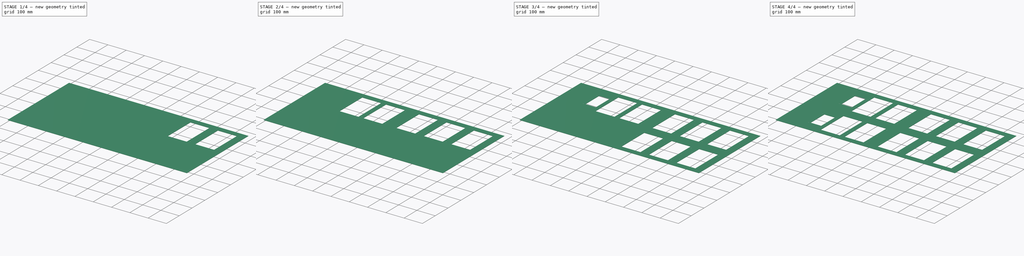
[diagram: build sequence overview — one tinted view per stage of 4, left to right]
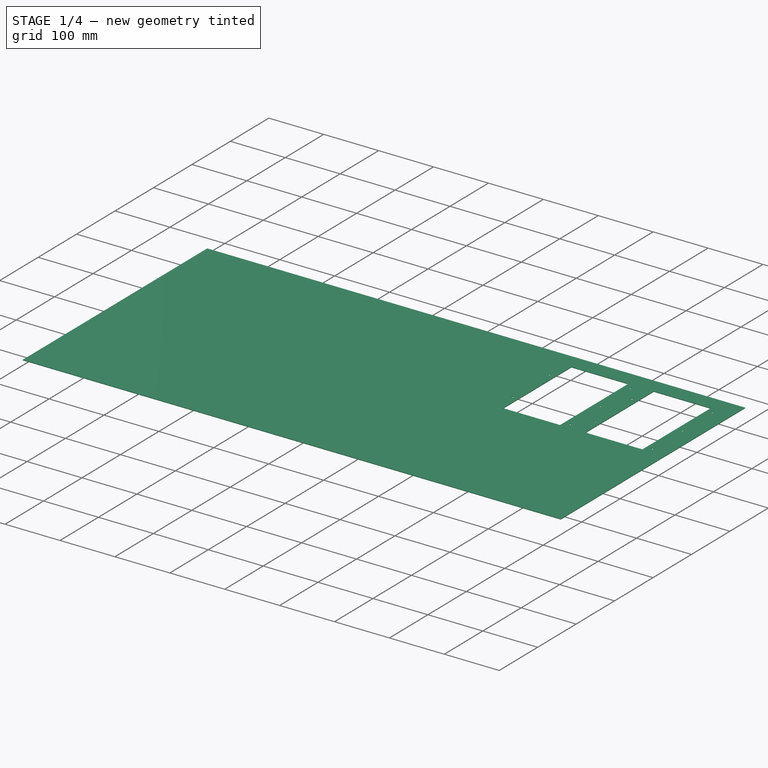
[diagram: stage 1 of 4 — iso view after this stage's code; geometry added in this stage tinted green]
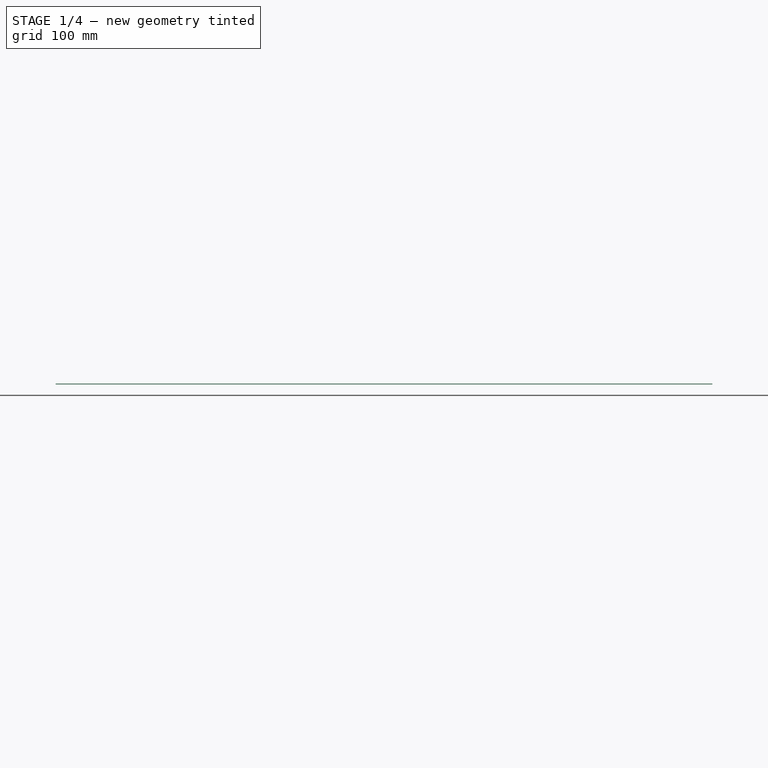
[diagram: stage 1 of 4 — front view after this stage's code; geometry added in this stage tinted green]
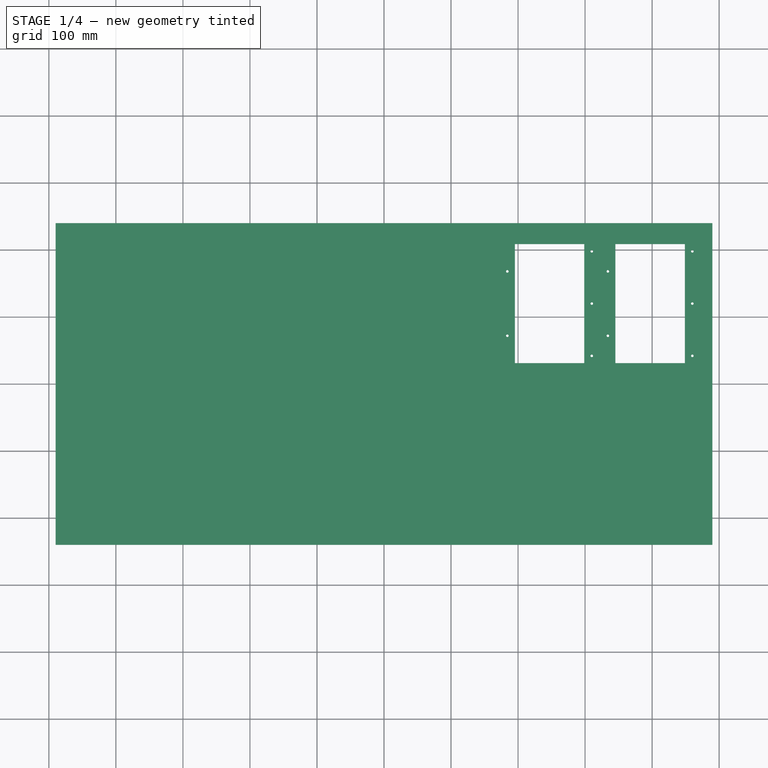
[diagram: stage 1 of 4 — top view after this stage's code; geometry added in this stage tinted green]
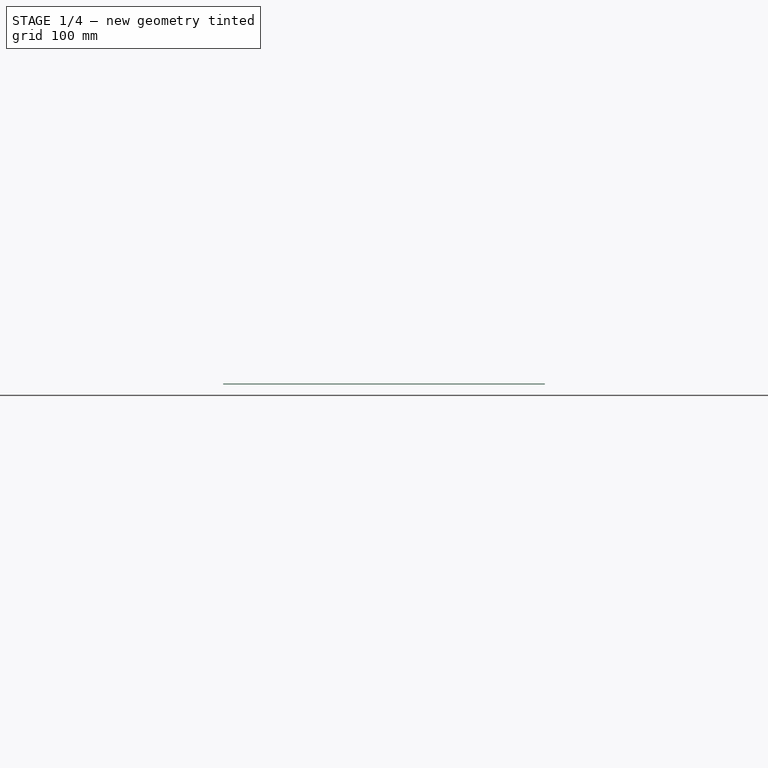
[diagram: stage 1 of 4 — right view after this stage's code; geometry added in this stage tinted green]
FCSTD DOCUMENT  (FreeCAD 0.20R29603 (Git))
Label: FrontPanel_Clean
License: All rights reserved
LicenseURL: http://en.wikipedia.org/wiki/All_rights_reserved
objects: Sketcher::SketchObject×13, PartDesign::SubShapeBinder×12, PartDesign::Pocket×12, Spreadsheet::Sheet×1, PartDesign::Pad×1, PartDesign::Body×1, Part::Part2DObjectPython×1
note: 53 computed .brp shape members not serialized (recipe doc carries the construction recipe); baked Part::Feature solids carry a one-line shape summary decoded from their .brp

FEATURE [Sketcher::SketchObject] Sketch
  FullyConstrained = true
  MapMode = 5
  Support = -> [XY_Plane]
  expr: Constraints[8] = <<Params>>.panel_width
  expr: Constraints[9] = <<Params>>.panel_height
  sketch-geometry (4):
    g0: LineSegment StartX=-490 StartY=240 StartZ=0 EndX=490 EndY=240 EndZ=0
    g1: LineSegment StartX=490 StartY=240 StartZ=0 EndX=490 EndY=-240 EndZ=0
    g2: LineSegment StartX=490 StartY=-240 StartZ=0 EndX=-490 EndY=-240 EndZ=0
    g3: LineSegment StartX=-490 StartY=-240 StartZ=0 EndX=-490 EndY=240 EndZ=0
  constraints (10):
    c: Coincident(g0,g1)
    c: Coincident(g1,g2)
    c: Coincident(g2,g3)
    c: Coincident(g3,g0)
    c: Horizontal(g2)
    c: Vertical(g1)
    c: Symmetric(g0,g0,g-2)
    c: Symmetric(g0,g2,g-1)
    c: DistanceX(g0,g0) = 980
    c: DistanceY(g2,g0) = 480
FEATURE [Spreadsheet::Sheet] Spreadsheet  label="Params"
  cells = A2=panel width; B2(panel_width)=980; A3=panel_height; B3(panel_height)=480; A4=panel_thickness; B4(panel_thickness)=1; A5=dig_margin_h; B5(dig_margin_h)=5; A6=dig_margin_v; B6(dig_margin_v)=5; A7=dig_hole_diameter; B7(dig_hole_diameter)=3.8; A8=srv_margin_h; B8(srv_margin_h)=5; A9=srv_margin_v; B9(srv_margin_v)=5
FEATURE [PartDesign::Pad] Pad
  Direction = (0,0,1)
  Length = 1
  Length2 = 10
  Profile = -> Sketch
  ReferenceAxis = -> Sketch [N_Axis]
  Type = 0
  expr: Length = <<Params>>.panel_thickness
FEATURE [PartDesign::SubShapeBinder] Binder002
  BindCopyOnChange = 0
  BindMode = 0
  ClaimChildren = false
  Context = -> Body [Binder002.]
  Fuse = false
  MakeFace = true
  OffsetFill = false
  OffsetIntersection = false
  OffsetJoinType = 0
  OffsetOpenResult = false
  PartialLoad = false
  Relative = true
  _Version = 2
FEATURE [Sketcher::SketchObject] Sketch077
  ExternalGeometry = -> [Binder002]
  FullyConstrained = true
  MapMode = 5
  Placement = pos=(0,0,0) rot=(1,0,0;3.14159rad)
  Support = -> [Pad]
  expr: Constraints[10] = <<Params>>.dig_margin_h
  expr: Constraints[11] = <<Params>>.dig_margin_v
  expr: Constraints[17] = <<Params>>.dig_hole_diameter
  expr: Constraints[8] = <<Params>>.dig_margin_h
  expr: Constraints[9] = <<Params>>.dig_margin_v
  sketch-geometry (9):
    g0: LineSegment StartX=345.2 StartY=-31.2 StartZ=0 EndX=448.8 EndY=-31.2 EndZ=0
    g1: LineSegment StartX=448.8 StartY=-31.2 StartZ=0 EndX=448.8 EndY=-208.8 EndZ=0
    g2: LineSegment StartX=448.8 StartY=-208.8 StartZ=0 EndX=345.2 EndY=-208.8 EndZ=0
    g3: LineSegment StartX=345.2 StartY=-208.8 StartZ=0 EndX=345.2 EndY=-31.2 EndZ=0
    g4: Circle CenterX=460 CenterY=-42 CenterZ=0 NormalX=0 NormalY=0 NormalZ=1 AngleXU=0 Radius=1.9
    g5: Circle CenterX=460 CenterY=-120 CenterZ=0 NormalX=0 NormalY=0 NormalZ=1 AngleXU=0 Radius=1.9
    g6: Circle CenterX=460 CenterY=-198 CenterZ=0 NormalX=0 NormalY=0 NormalZ=1 AngleXU=0 Radius=1.9
    g7: Circle CenterX=334 CenterY=-168 CenterZ=0 NormalX=0 NormalY=0 NormalZ=1 AngleXU=0 Radius=1.9
    g8: Circle CenterX=334 CenterY=-72 CenterZ=0 NormalX=0 NormalY=0 NormalZ=1 AngleXU=0 Radius=1.9
  constraints (22):
    c: Coincident(g0,g1)
    c: Coincident(g1,g2)
    c: Coincident(g2,g3)
    c: Coincident(g3,g0)
    c: Horizontal(g0)
    c: Horizontal(g2)
    c: Vertical(g1)
    c: Vertical(g3)
    c: DistanceX(g-8,g0) = 5
    c: DistanceY(g0,g-8) = 5
    c: DistanceX(g1,g-9) = 5
    c: DistanceY(g-9,g1) = 5
    c: Coincident(g4,g-3)
    c: Coincident(g5,g-4)
    c: Coincident(g6,g-5)
    c: Coincident(g7,g-6)
    c: Coincident(g8,g-7)
    c: Diameter(g4) = 3.8
    c: Equal(g5,g6)
    c: Equal(g6,g7)
    c: Equal(g7,g8)
    c: Equal(g4,g5)
FEATURE [PartDesign::Pocket] Pocket018
  BaseFeature = -> Pad
  Direction = (0,0,1)
  Length = 5
  Length2 = 5
  Profile = -> Sketch077
  ReferenceAxis = -> Sketch077 [N_Axis]
  Type = 2
FEATURE [PartDesign::SubShapeBinder] Binder005
  BindCopyOnChange = 0
  BindMode = 0
  ClaimChildren = false
  Context = -> Body [Binder005.]
  Fuse = false
  MakeFace = true
  OffsetFill = false
  OffsetIntersection = false
  OffsetJoinType = 0
  OffsetOpenResult = false
  PartialLoad = false
  Relative = true
  _Version = 2
FEATURE [Sketcher::SketchObject] Sketch095
  ExternalGeometry = -> [Binder005]
  FullyConstrained = true
  MapMode = 5
  Placement = pos=(0,0,0) rot=(1,0,0;3.14159rad)
  Support = -> [Pocket018]
  expr: Constraints[13] = <<Params>>.dig_hole_diameter
  expr: Constraints[18] = <<Params>>.dig_margin_h
  expr: Constraints[19] = <<Params>>.dig_margin_v
  expr: Constraints[20] = <<Params>>.dig_margin_h
  expr: Constraints[21] = <<Params>>.dig_margin_v
  sketch-geometry (9):
    g0: LineSegment StartX=195.2 StartY=-31.2 StartZ=0 EndX=298.8 EndY=-31.2 EndZ=0
    g1: LineSegment StartX=298.8 StartY=-31.2 StartZ=0 EndX=298.8 EndY=-208.8 EndZ=0
    g2: LineSegment StartX=298.8 StartY=-208.8 StartZ=0 EndX=195.2 EndY=-208.8 EndZ=0
    g3: LineSegment StartX=195.2 StartY=-208.8 StartZ=0 EndX=195.2 EndY=-31.2 EndZ=0
    g4: Circle CenterX=310 CenterY=-42 CenterZ=0 NormalX=0 NormalY=0 NormalZ=1 AngleXU=0 Radius=1.9
    g5: Circle CenterX=310 CenterY=-120 CenterZ=0 NormalX=0 NormalY=0 NormalZ=1 AngleXU=0 Radius=1.9
    g6: Circle CenterX=184 CenterY=-72 CenterZ=0 NormalX=0 NormalY=0 NormalZ=1 AngleXU=0 Radius=1.9
    g7: Circle CenterX=310 CenterY=-198 CenterZ=0 NormalX=0 NormalY=0 NormalZ=1 AngleXU=0 Radius=1.9
    g8: Circle CenterX=184 CenterY=-168 CenterZ=0 NormalX=0 NormalY=0 NormalZ=1 AngleXU=0 Radius=1.9
  constraints (22):
    c: Coincident(g0,g1)
    c: Coincident(g1,g2)
    c: Coincident(g2,g3)
    c: Coincident(g3,g0)
    c: Horizontal(g0)
    c: Horizontal(g2)
    c: Vertical(g1)
    c: Vertical(g3)
    c: Coincident(g4,g-9)
    c: Coincident(g5,g-7)
    c: Coincident(g6,g-5)
    c: Coincident(g7,g-8)
    c: Coincident(g8,g-6)
    c: Diameter(g7) = 3.8
    c: Equal(g7,g5)
    c: Equal(g5,g8)
    c: Equal(g8,g4)
    c: Equal(g4,g6)
    c: DistanceX(g-3,g0) = 5
    c: DistanceY(g0,g-3) = 5
    c: DistanceX(g1,g-4) = 5
    c: DistanceY(g-4,g1) = 5
FEATURE [PartDesign::Pocket] Pocket023
  BaseFeature = -> Pocket018
  Direction = (0,0,1)
  Length = 5
  Length2 = 5
  Profile = -> Sketch095
  ReferenceAxis = -> Sketch095 [N_Axis]
  Type = 2
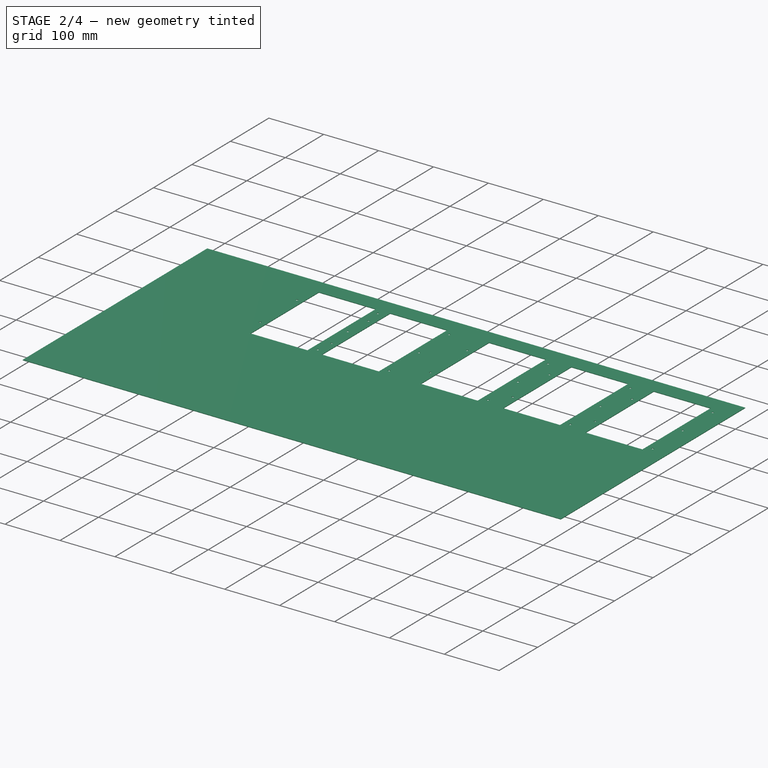
[diagram: stage 2 of 4 — iso view after this stage's code; geometry added in this stage tinted green]
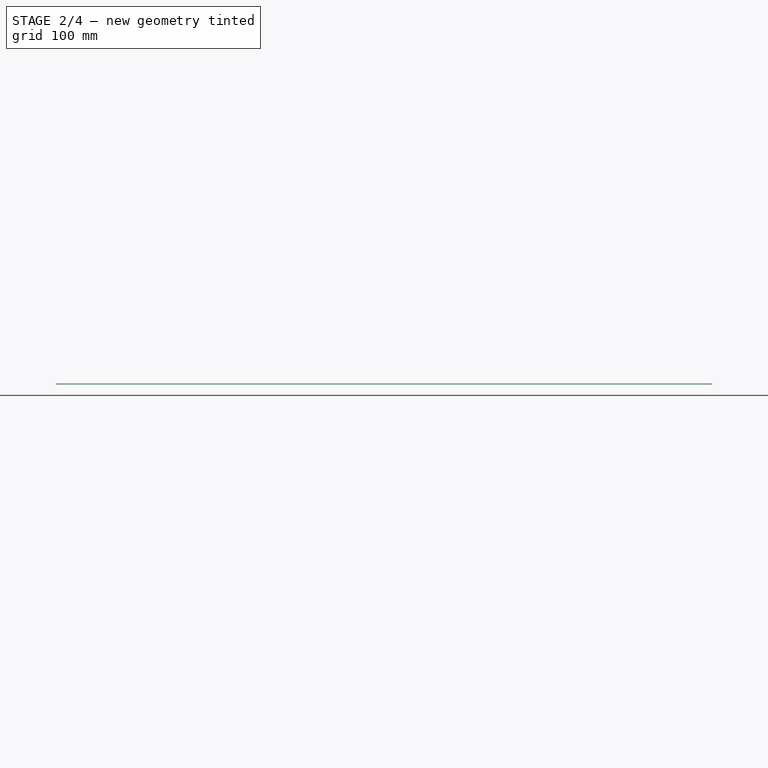
[diagram: stage 2 of 4 — front view after this stage's code; geometry added in this stage tinted green]
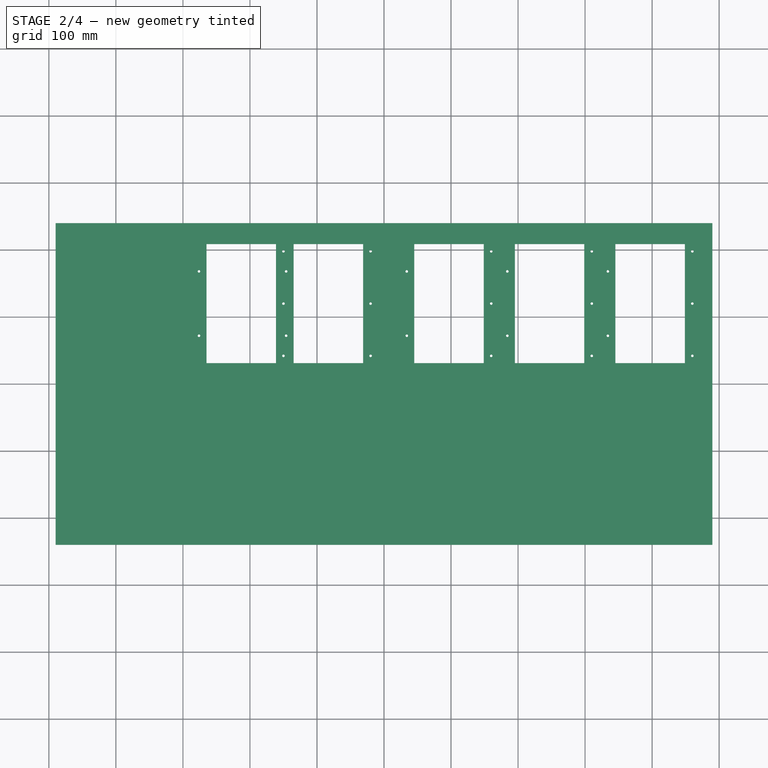
[diagram: stage 2 of 4 — top view after this stage's code; geometry added in this stage tinted green]
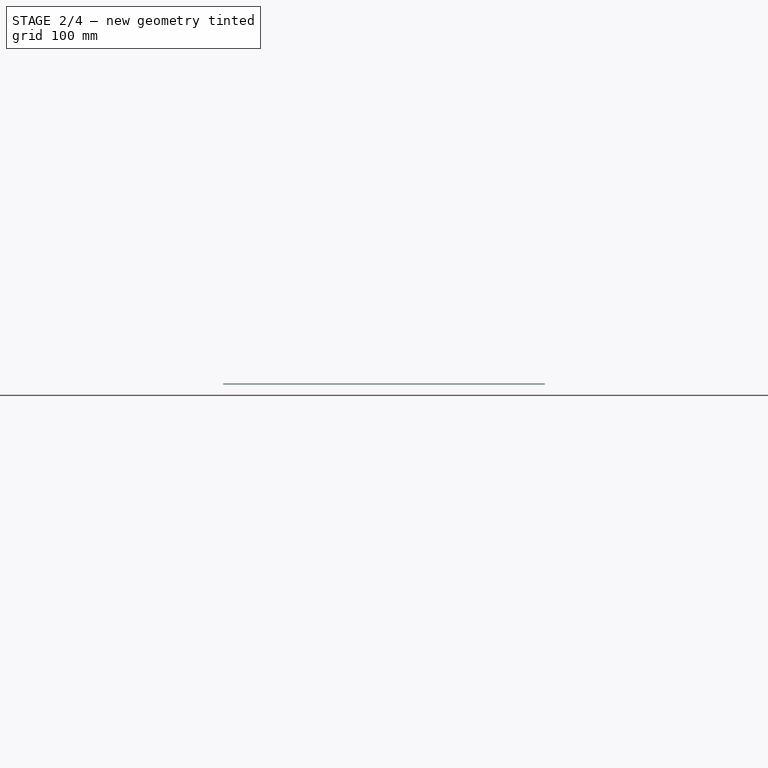
[diagram: stage 2 of 4 — right view after this stage's code; geometry added in this stage tinted green]
FEATURE [PartDesign::SubShapeBinder] Binder008
  BindCopyOnChange = 0
  BindMode = 0
  ClaimChildren = false
  Context = -> Body [Binder008.]
  Fuse = false
  MakeFace = true
  OffsetFill = false
  OffsetIntersection = false
  OffsetJoinType = 0
  OffsetOpenResult = false
  PartialLoad = false
  Relative = true
  _Version = 2
FEATURE [Sketcher::SketchObject] Sketch113
  ExternalGeometry = -> [Binder008]
  FullyConstrained = true
  MapMode = 5
  Placement = pos=(0,0,0) rot=(1,0,0;3.14159rad)
  Support = -> [Pocket023]
  expr: Constraints[17] = <<Params>>.dig_margin_v
  expr: Constraints[18] = <<Params>>.dig_margin_h
  expr: Constraints[19] = <<Params>>.dig_margin_v
  expr: Constraints[20] = <<Params>>.dig_margin_h
  expr: Constraints[4] = <<Params>>.dig_hole_diameter
  sketch-geometry (9):
    g0: Circle CenterX=160 CenterY=-120 CenterZ=0 NormalX=0 NormalY=0 NormalZ=1 AngleXU=0 Radius=1.9
    g1: Circle CenterX=160 CenterY=-42 CenterZ=0 NormalX=0 NormalY=0 NormalZ=1 AngleXU=0 Radius=1.9
    g2: Circle CenterX=160 CenterY=-198 CenterZ=0 NormalX=0 NormalY=0 NormalZ=1 AngleXU=0 Radius=1.9
    g3: Circle CenterX=33.9999 CenterY=-168 CenterZ=0 NormalX=0 NormalY=0 NormalZ=1 AngleXU=0 Radius=1.9
    g4: Circle CenterX=33.9999 CenterY=-72 CenterZ=0 NormalX=0 NormalY=0 NormalZ=1 AngleXU=0 Radius=1.9
    g5: LineSegment StartX=45.1999 StartY=-31.2 StartZ=0 EndX=148.8 EndY=-31.2 EndZ=0
    g6: LineSegment StartX=148.8 StartY=-31.2 StartZ=0 EndX=148.8 EndY=-208.8 EndZ=0
    g7: LineSegment StartX=148.8 StartY=-208.8 StartZ=0 EndX=45.1999 EndY=-208.8 EndZ=0
    g8: LineSegment StartX=45.1999 StartY=-208.8 StartZ=0 EndX=45.1999 EndY=-31.2 EndZ=0
  constraints (22):
    c: Coincident(g0,g-7)
    c: Coincident(g1,g-6)
    c: Coincident(g2,g-8)
    c: Coincident(g3,g-9)
    c: Diameter(g4) = 3.8
    c: Equal(g4,g3)
    c: Equal(g3,g2)
    c: Equal(g2,g0)
    c: Equal(g0,g1)
    c: Coincident(g5,g6)
    c: Coincident(g6,g7)
    c: Coincident(g7,g8)
    c: Coincident(g8,g5)
    c: Horizontal(g5)
    c: Horizontal(g7)
    c: Vertical(g6)
    c: Vertical(g8)
    c: DistanceY(g5,g-3) = 5
    c: DistanceX(g-3,g5) = 5
    c: DistanceY(g-4,g6) = 5
    c: DistanceX(g6,g-4) = 5
    c: Coincident(g4,g-5)
FEATURE [PartDesign::Pocket] Pocket028
  BaseFeature = -> Pocket023
  Direction = (0,0,1)
  Length = 5
  Length2 = 5
  Profile = -> Sketch113
  ReferenceAxis = -> Sketch113 [N_Axis]
  Type = 2
FEATURE [PartDesign::SubShapeBinder] Binder011
  BindCopyOnChange = 0
  BindMode = 0
  ClaimChildren = false
  Context = -> Body [Binder011.]
  Fuse = false
  MakeFace = true
  OffsetFill = false
  OffsetIntersection = false
  OffsetJoinType = 0
  OffsetOpenResult = false
  PartialLoad = false
  Relative = true
  _Version = 2
FEATURE [Sketcher::SketchObject] Sketch131
  ExternalGeometry = -> [Binder011]
  FullyConstrained = true
  MapMode = 5
  Placement = pos=(0,0,0) rot=(1,0,0;3.14159rad)
  Support = -> [Pocket028]
  expr: Constraints[13] = <<Params>>.dig_hole_diameter
  expr: Constraints[18] = <<Params>>.dig_margin_v
  expr: Constraints[19] = <<Params>>.dig_margin_h
  expr: Constraints[20] = <<Params>>.dig_margin_v
  expr: Constraints[21] = <<Params>>.dig_margin_h
  sketch-geometry (9):
    g0: LineSegment StartX=-134.8 StartY=-31.2001 StartZ=0 EndX=-31.2002 EndY=-31.2001 EndZ=0
    g1: LineSegment StartX=-31.2002 StartY=-31.2001 StartZ=0 EndX=-31.2002 EndY=-208.8 EndZ=0
    g2: LineSegment StartX=-31.2002 StartY=-208.8 StartZ=0 EndX=-134.8 EndY=-208.8 EndZ=0
    g3: LineSegment StartX=-134.8 StartY=-208.8 StartZ=0 EndX=-134.8 EndY=-31.2001 EndZ=0
    g4: Circle CenterX=-20.0002 CenterY=-42.0001 CenterZ=0 NormalX=0 NormalY=0 NormalZ=1 AngleXU=0 Radius=1.9
    g5: Circle CenterX=-20.0002 CenterY=-120 CenterZ=0 NormalX=0 NormalY=0 NormalZ=1 AngleXU=0 Radius=1.9
    g6: Circle CenterX=-20.0002 CenterY=-198 CenterZ=0 NormalX=0 NormalY=0 NormalZ=1 AngleXU=0 Radius=1.9
    g7: Circle CenterX=-146 CenterY=-168 CenterZ=0 NormalX=0 NormalY=0 NormalZ=1 AngleXU=0 Radius=1.9
    g8: Circle CenterX=-146 CenterY=-72.0001 CenterZ=0 NormalX=0 NormalY=0 NormalZ=1 AngleXU=0 Radius=1.9
  constraints (22):
    c: Coincident(g0,g1)
    c: Coincident(g1,g2)
    c: Coincident(g2,g3)
    c: Coincident(g3,g0)
    c: Horizontal(g0)
    c: Horizontal(g2)
    c: Vertical(g1)
    c: Vertical(g3)
    c: Coincident(g4,g-7)
    c: Coincident(g5,g-5)
    c: Coincident(g6,g-6)
    c: Coincident(g7,g-9)
    c: Coincident(g8,g-8)
    c: Diameter(g8) = 3.8
    c: Equal(g8,g7)
    c: Equal(g7,g5)
    c: Equal(g5,g6)
    c: Equal(g6,g4)
    c: DistanceY(g0,g-3) = 5
    c: DistanceX(g-3,g0) = 5
    c: DistanceY(g-4,g1) = 5
    c: DistanceX(g1,g-4) = 5
FEATURE [PartDesign::Pocket] Pocket033
  BaseFeature = -> Pocket028
  Direction = (0,0,1)
  Length = 5
  Length2 = 5
  Profile = -> Sketch131
  ReferenceAxis = -> Sketch131 [N_Axis]
  Type = 2
FEATURE [PartDesign::SubShapeBinder] Binder014
  BindCopyOnChange = 0
  BindMode = 0
  ClaimChildren = false
  Context = -> Body [Binder014.]
  Fuse = false
  MakeFace = true
  OffsetFill = false
  OffsetIntersection = false
  OffsetJoinType = 0
  OffsetOpenResult = false
  PartialLoad = false
  Relative = true
  _Version = 2
FEATURE [Sketcher::SketchObject] Sketch149
  ExternalGeometry = -> [Binder014]
  FullyConstrained = true
  MapMode = 5
  Placement = pos=(0,0,0) rot=(1,0,0;3.14159rad)
  Support = -> [Pocket033]
  expr: Constraints[13] = <<Params>>.dig_hole_diameter
  expr: Constraints[18] = <<Params>>.dig_margin_v
  expr: Constraints[19] = <<Params>>.dig_margin_h
  expr: Constraints[20] = <<Params>>.dig_margin_v
  expr: Constraints[21] = <<Params>>.dig_margin_h
  sketch-geometry (9):
    g0: Circle CenterX=-150 CenterY=-42.0001 CenterZ=0 NormalX=0 NormalY=0 NormalZ=1 AngleXU=0 Radius=1.9
    g1: Circle CenterX=-150 CenterY=-120 CenterZ=0 NormalX=0 NormalY=0 NormalZ=1 AngleXU=0 Radius=1.9
    g2: Circle CenterX=-150 CenterY=-198 CenterZ=0 NormalX=0 NormalY=0 NormalZ=1 AngleXU=0 Radius=1.9
    g3: Circle CenterX=-276 CenterY=-168 CenterZ=0 NormalX=0 NormalY=0 NormalZ=1 AngleXU=0 Radius=1.9
    g4: Circle CenterX=-276 CenterY=-72.0001 CenterZ=0 NormalX=0 NormalY=0 NormalZ=1 AngleXU=0 Radius=1.9
    g5: LineSegment StartX=-264.8 StartY=-31.2001 StartZ=0 EndX=-161.2 EndY=-31.2001 EndZ=0
    g6: LineSegment StartX=-161.2 StartY=-31.2001 StartZ=0 EndX=-161.2 EndY=-208.8 EndZ=0
    g7: LineSegment StartX=-161.2 StartY=-208.8 StartZ=0 EndX=-264.8 EndY=-208.8 EndZ=0
    g8: LineSegment StartX=-264.8 StartY=-208.8 StartZ=0 EndX=-264.8 EndY=-31.2001 EndZ=0
  constraints (22):
    c: Coincident(g0,g-3)
    c: Coincident(g1,g-5)
    c: Coincident(g2,g-6)
    c: Coincident(g3,g-7)
    c: Coincident(g4,g-9)
    c: Coincident(g5,g6)
    c: Coincident(g6,g7)
    c: Coincident(g7,g8)
    c: Coincident(g8,g5)
    c: Horizontal(g5)
    c: Horizontal(g7)
    c: Vertical(g6)
    c: Vertical(g8)
    c: Diameter(g0) = 3.8
    c: Equal(g0,g1)
    c: Equal(g1,g2)
    c: Equal(g2,g3)
    c: Equal(g3,g4)
    c: DistanceY(g5,g-8) = 5
    c: DistanceX(g-8,g5) = 5
    c: DistanceY(g-4,g6) = 5
    c: DistanceX(g6,g-4) = 5
FEATURE [PartDesign::Pocket] Pocket038
  BaseFeature = -> Pocket033
  Direction = (0,0,1)
  Length = 5
  Length2 = 5
  Profile = -> Sketch149
  ReferenceAxis = -> Sketch149 [N_Axis]
  Type = 2
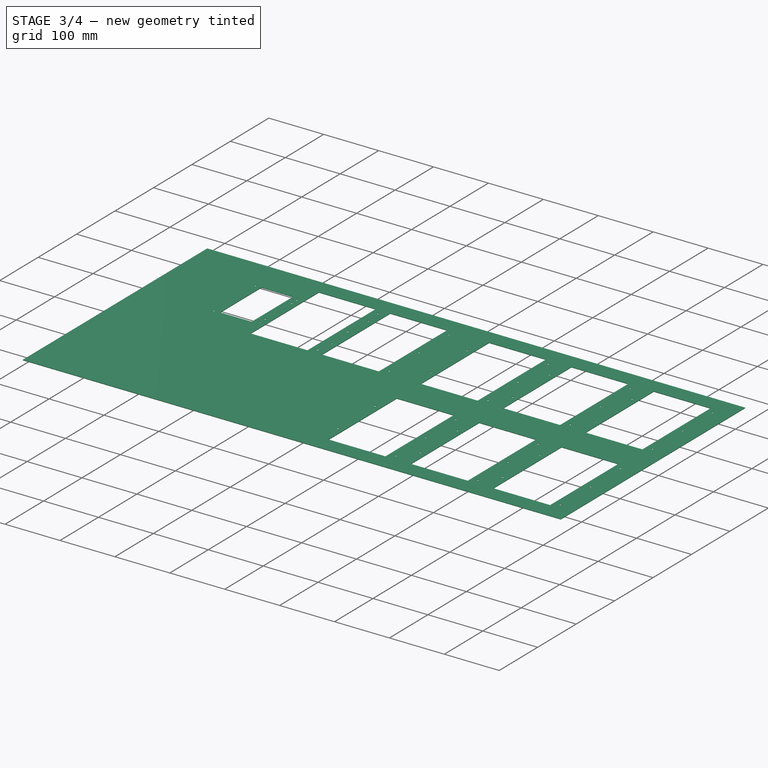
[diagram: stage 3 of 4 — iso view after this stage's code; geometry added in this stage tinted green]
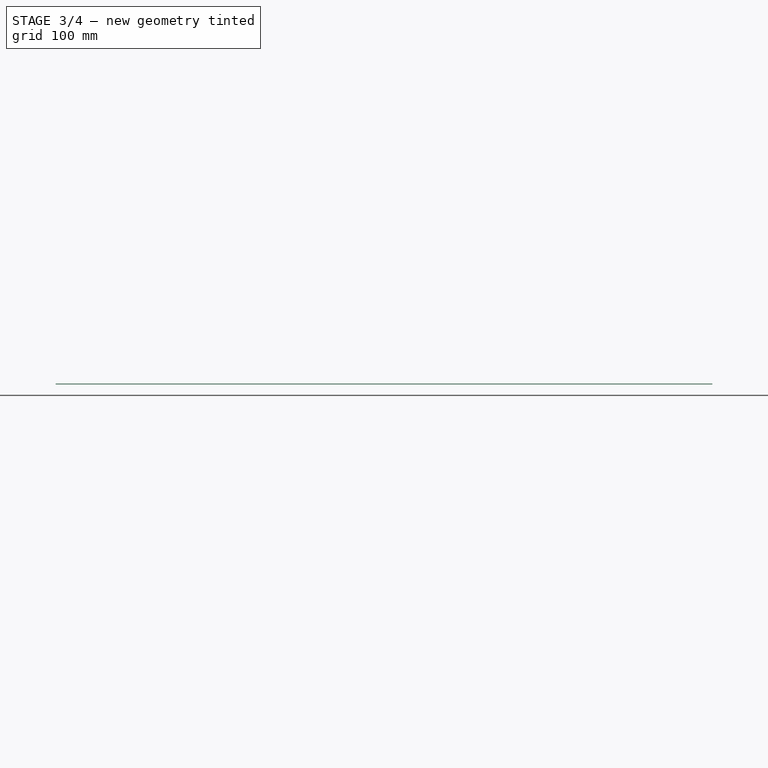
[diagram: stage 3 of 4 — front view after this stage's code; geometry added in this stage tinted green]
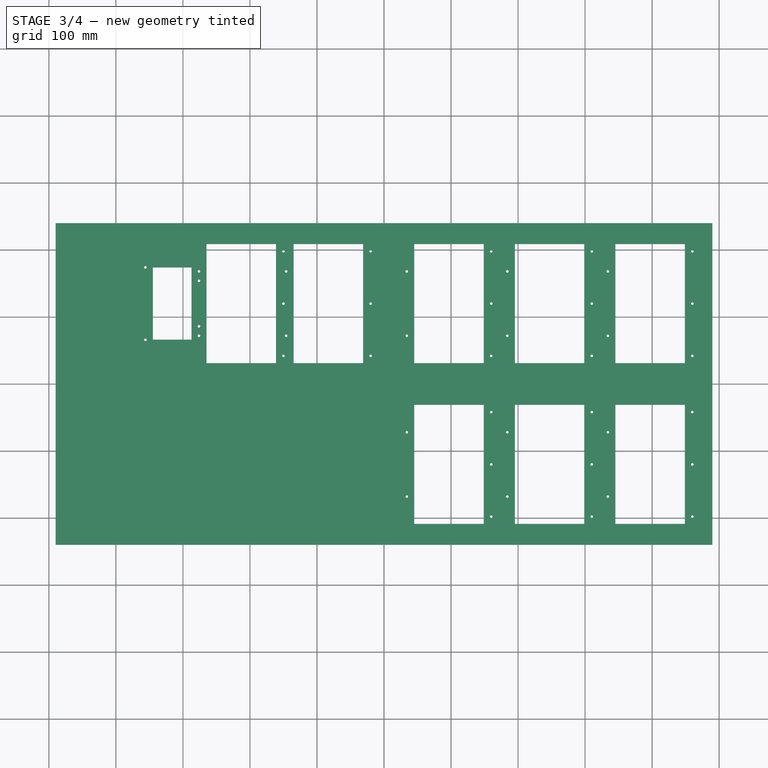
[diagram: stage 3 of 4 — top view after this stage's code; geometry added in this stage tinted green]
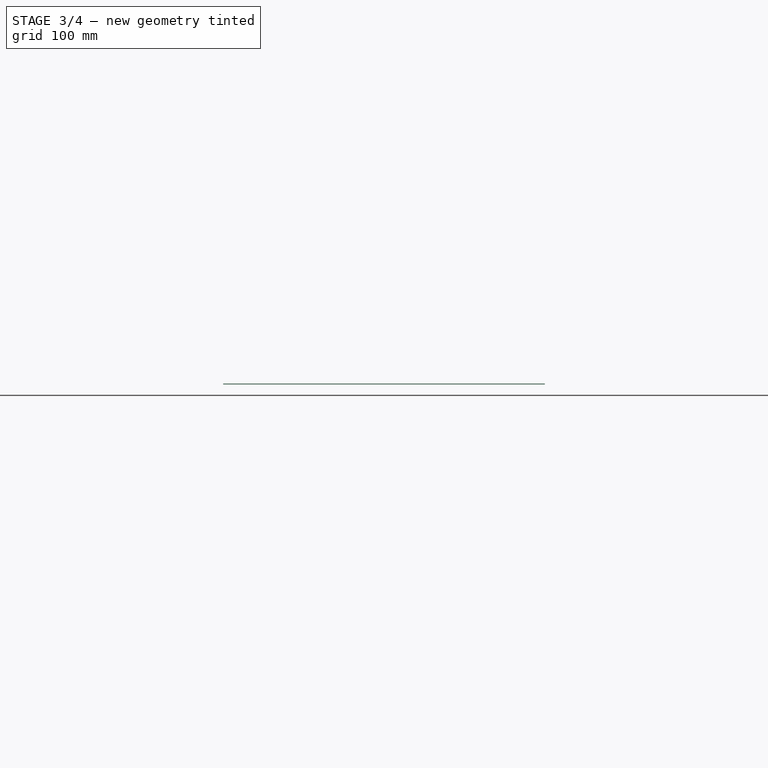
[diagram: stage 3 of 4 — right view after this stage's code; geometry added in this stage tinted green]
FEATURE [PartDesign::SubShapeBinder] Binder019
  BindCopyOnChange = 0
  BindMode = 0
  ClaimChildren = false
  Context = -> Body [Binder019.]
  Fuse = false
  MakeFace = true
  OffsetFill = false
  OffsetIntersection = false
  OffsetJoinType = 0
  OffsetOpenResult = false
  PartialLoad = false
  Relative = true
  _Version = 2
FEATURE [Sketcher::SketchObject] Sketch198
  ExternalGeometry = -> [Binder019]
  FullyConstrained = true
  MapMode = 5
  Placement = pos=(0,0,0) rot=(1,0,0;3.14159rad)
  Support = -> [Pad]
  expr: Constraints[12] = <<Params>>.dig_hole_diameter
  expr: Constraints[16] = <<Params>>.srv_margin_v
  expr: Constraints[17] = <<Params>>.srv_margin_h
  expr: Constraints[18] = <<Params>>.srv_margin_v
  expr: Constraints[19] = <<Params>>.srv_margin_h
  sketch-geometry (8):
    g0: LineSegment StartX=-344.8 StartY=-66.2001 StartZ=0 EndX=-287.2 EndY=-66.2001 EndZ=0
    g1: LineSegment StartX=-287.2 StartY=-66.2001 StartZ=0 EndX=-287.2 EndY=-173.8 EndZ=0
    g2: LineSegment StartX=-287.2 StartY=-173.8 StartZ=0 EndX=-344.8 EndY=-173.8 EndZ=0
    g3: LineSegment StartX=-344.8 StartY=-173.8 StartZ=0 EndX=-344.8 EndY=-66.2001 EndZ=0
    g4: Circle CenterX=-276 CenterY=-86.0001 CenterZ=0 NormalX=0 NormalY=0 NormalZ=1 AngleXU=0 Radius=1.9
    g5: Circle CenterX=-276 CenterY=-154 CenterZ=0 NormalX=0 NormalY=0 NormalZ=1 AngleXU=0 Radius=1.9
    g6: Circle CenterX=-356 CenterY=-66.0001 CenterZ=0 NormalX=0 NormalY=0 NormalZ=1 AngleXU=0 Radius=1.9
    g7: Circle CenterX=-356 CenterY=-174 CenterZ=0 NormalX=0 NormalY=0 NormalZ=1 AngleXU=0 Radius=1.9
  constraints (20):
    c: Coincident(g0,g1)
    c: Coincident(g1,g2)
    c: Coincident(g2,g3)
    c: Coincident(g3,g0)
    c: Horizontal(g0)
    c: Horizontal(g2)
    c: Vertical(g1)
    c: Vertical(g3)
    c: Coincident(g4,g-3)
    c: Coincident(g5,g-5)
    c: Coincident(g6,g-7)
    c: Coincident(g7,g-6)
    c: Diameter(g7) = 3.8
    c: Equal(g7,g5)
    c: Equal(g5,g4)
    c: Equal(g4,g6)
    c: DistanceY(g0,g-8) = 5
    c: DistanceX(g-8,g0) = 5
    c: DistanceY(g-4,g1) = 5
    c: DistanceX(g1,g-4) = 5
FEATURE [PartDesign::Pocket] Pocket056
  BaseFeature = -> Pocket038
  Direction = (0,0,1)
  Length = 5
  Length2 = 5
  Profile = -> Sketch198
  ReferenceAxis = -> Sketch198 [N_Axis]
  Type = 2
FEATURE [PartDesign::SubShapeBinder] Binder022
  BindCopyOnChange = 0
  BindMode = 0
  ClaimChildren = false
  Context = -> Body [Binder022.]
  Fuse = false
  MakeFace = true
  OffsetFill = false
  OffsetIntersection = false
  OffsetJoinType = 0
  OffsetOpenResult = false
  PartialLoad = false
  Relative = true
  _Version = 2
FEATURE [Sketcher::SketchObject] Sketch216
  ExternalGeometry = -> [Binder022]
  FullyConstrained = true
  MapMode = 5
  Placement = pos=(0,0,0) rot=(1,0,0;3.14159rad)
  Support = -> [Pad]
  expr: Constraints[13] = <<Params>>.dig_hole_diameter
  expr: Constraints[18] = <<Params>>.dig_margin_v
  expr: Constraints[19] = <<Params>>.dig_margin_h
  expr: Constraints[20] = <<Params>>.dig_margin_v
  expr: Constraints[21] = <<Params>>.dig_margin_h
  sketch-geometry (9):
    g0: Circle CenterX=460 CenterY=42.0001 CenterZ=0 NormalX=0 NormalY=0 NormalZ=1 AngleXU=0 Radius=1.9
    g1: Circle CenterX=334 CenterY=72.0001 CenterZ=0 NormalX=0 NormalY=0 NormalZ=1 AngleXU=0 Radius=1.9
    g2: Circle CenterX=334 CenterY=168 CenterZ=0 NormalX=0 NormalY=0 NormalZ=1 AngleXU=0 Radius=1.9
    g3: Circle CenterX=460 CenterY=198 CenterZ=0 NormalX=0 NormalY=0 NormalZ=1 AngleXU=0 Radius=1.9
    g4: Circle CenterX=460 CenterY=120 CenterZ=0 NormalX=0 NormalY=0 NormalZ=1 AngleXU=0 Radius=1.9
    g5: LineSegment StartX=345.2 StartY=208.8 StartZ=0 EndX=448.8 EndY=208.8 EndZ=0
    g6: LineSegment StartX=448.8 StartY=208.8 StartZ=0 EndX=448.8 EndY=31.2001 EndZ=0
    g7: LineSegment StartX=448.8 StartY=31.2001 StartZ=0 EndX=345.2 EndY=31.2001 EndZ=0
    g8: LineSegment StartX=345.2 StartY=31.2001 StartZ=0 EndX=345.2 EndY=208.8 EndZ=0
  constraints (22):
    c: Coincident(g0,g-9)
    c: Coincident(g1,g-8)
    c: Coincident(g2,g-7)
    c: Coincident(g3,g-5)
    c: Coincident(g4,g-6)
    c: Coincident(g5,g6)
    c: Coincident(g6,g7)
    c: Coincident(g7,g8)
    c: Coincident(g8,g5)
    c: Horizontal(g5)
    c: Horizontal(g7)
    c: Vertical(g6)
    c: Vertical(g8)
    c: Diameter(g2) = 3.8
    c: Equal(g2,g1)
    c: Equal(g1,g0)
    c: Equal(g0,g4)
    c: Equal(g4,g3)
    c: DistanceY(g5,g-3) = 5
    c: DistanceX(g-3,g5) = 5
    c: DistanceY(g-4,g6) = 5
    c: DistanceX(g6,g-4) = 5
FEATURE [PartDesign::Pocket] Pocket061
  BaseFeature = -> Pocket056
  Direction = (0,0,1)
  Length = 5
  Length2 = 5
  Profile = -> Sketch216
  ReferenceAxis = -> Sketch216 [N_Axis]
  Type = 2
FEATURE [PartDesign::SubShapeBinder] Binder025
  BindCopyOnChange = 0
  BindMode = 0
  ClaimChildren = false
  Context = -> Body [Binder025.]
  Fuse = false
  MakeFace = true
  OffsetFill = false
  OffsetIntersection = false
  OffsetJoinType = 0
  OffsetOpenResult = false
  PartialLoad = false
  Relative = true
  _Version = 2
FEATURE [Sketcher::SketchObject] Sketch234
  ExternalGeometry = -> [Binder025]
  FullyConstrained = true
  MapMode = 5
  Placement = pos=(0,0,0) rot=(1,0,0;3.14159rad)
  Support = -> [Pocket061]
  expr: Constraints[13] = <<Params>>.dig_margin_v
  expr: Constraints[14] = <<Params>>.dig_margin_h
  expr: Constraints[15] = <<Params>>.dig_margin_v
  expr: Constraints[16] = <<Params>>.dig_margin_h
  expr: Constraints[17] = <<Params>>.dig_hole_diameter
  sketch-geometry (9):
    g0: Circle CenterX=310 CenterY=198 CenterZ=0 NormalX=0 NormalY=0 NormalZ=1 AngleXU=0 Radius=1.9
    g1: Circle CenterX=184 CenterY=168 CenterZ=0 NormalX=0 NormalY=0 NormalZ=1 AngleXU=0 Radius=1.9
    g2: Circle CenterX=310 CenterY=120 CenterZ=0 NormalX=0 NormalY=0 NormalZ=1 AngleXU=0 Radius=1.9
    g3: Circle CenterX=310 CenterY=42 CenterZ=0 NormalX=0 NormalY=0 NormalZ=1 AngleXU=0 Radius=1.9
    g4: Circle CenterX=184 CenterY=72 CenterZ=0 NormalX=0 NormalY=0 NormalZ=1 AngleXU=0 Radius=1.9
    g5: LineSegment StartX=195.2 StartY=208.8 StartZ=0 EndX=298.8 EndY=208.8 EndZ=0
    g6: LineSegment StartX=298.8 StartY=208.8 StartZ=0 EndX=298.8 EndY=31.2 EndZ=0
    g7: LineSegment StartX=298.8 StartY=31.2 StartZ=0 EndX=195.2 EndY=31.2 EndZ=0
    g8: LineSegment StartX=195.2 StartY=31.2 StartZ=0 EndX=195.2 EndY=208.8 EndZ=0
  constraints (22):
    c: Coincident(g0,g-3)
    c: Coincident(g1,g-7)
    c: Coincident(g2,g-4)
    c: Coincident(g3,g-5)
    c: Coincident(g4,g-6)
    c: Coincident(g5,g6)
    c: Coincident(g6,g7)
    c: Coincident(g7,g8)
    c: Coincident(g8,g5)
    c: Horizontal(g5)
    c: Horizontal(g7)
    c: Vertical(g6)
    c: Vertical(g8)
    c: DistanceY(g5,g-8) = 5
    c: DistanceX(g-8,g5) = 5
    c: DistanceY(g-9,g6) = 5
    c: DistanceX(g6,g-9) = 5
    c: Diameter(g0) = 3.8
    c: Equal(g0,g2)
    c: Equal(g2,g3)
    c: Equal(g3,g4)
    c: Equal(g4,g1)
FEATURE [PartDesign::Pocket] Pocket066
  BaseFeature = -> Pocket061
  Direction = (0,0,1)
  Length = 5
  Length2 = 5
  Profile = -> Sketch234
  ReferenceAxis = -> Sketch234 [N_Axis]
  Type = 2
FEATURE [PartDesign::SubShapeBinder] Binder028
  BindCopyOnChange = 0
  BindMode = 0
  ClaimChildren = false
  Context = -> Body [Binder028.]
  Fuse = false
  MakeFace = true
  OffsetFill = false
  OffsetIntersection = false
  OffsetJoinType = 0
  OffsetOpenResult = false
  PartialLoad = false
  Relative = true
  _Version = 2
FEATURE [Sketcher::SketchObject] Sketch252
  ExternalGeometry = -> [Binder028]
  FullyConstrained = true
  MapMode = 5
  Placement = pos=(0,0,0) rot=(1,0,0;3.14159rad)
  Support = -> [Pocket066]
  expr: Constraints[13] = <<Params>>.dig_margin_v
  expr: Constraints[14] = <<Params>>.dig_margin_h
  expr: Constraints[15] = <<Params>>.dig_margin_v
  expr: Constraints[16] = <<Params>>.dig_margin_h
  expr: Constraints[17] = <<Params>>.dig_hole_diameter
  sketch-geometry (9):
    g0: Circle CenterX=160 CenterY=198 CenterZ=0 NormalX=0 NormalY=0 NormalZ=1 AngleXU=0 Radius=1.9
    g1: Circle CenterX=160 CenterY=120 CenterZ=0 NormalX=0 NormalY=0 NormalZ=1 AngleXU=0 Radius=1.9
    g2: Circle CenterX=160 CenterY=42.0001 CenterZ=0 NormalX=0 NormalY=0 NormalZ=1 AngleXU=0 Radius=1.9
    g3: Circle CenterX=33.9999 CenterY=72.0001 CenterZ=0 NormalX=0 NormalY=0 NormalZ=1 AngleXU=0 Radius=1.9
    g4: Circle CenterX=33.9999 CenterY=168 CenterZ=0 NormalX=0 NormalY=0 NormalZ=1 AngleXU=0 Radius=1.9
    g5: LineSegment StartX=45.1999 StartY=208.8 StartZ=0 EndX=148.8 EndY=208.8 EndZ=0
    g6: LineSegment StartX=148.8 StartY=208.8 StartZ=0 EndX=148.8 EndY=31.2001 EndZ=0
    g7: LineSegment StartX=148.8 StartY=31.2001 StartZ=0 EndX=45.1999 EndY=31.2001 EndZ=0
    g8: LineSegment StartX=45.1999 StartY=31.2001 StartZ=0 EndX=45.1999 EndY=208.8 EndZ=0
  constraints (22):
    c: Coincident(g0,g-3)
    c: Coincident(g1,g-5)
    c: Coincident(g2,g-6)
    c: Coincident(g3,g-7)
    c: Coincident(g4,g-8)
    c: Coincident(g5,g6)
    c: Coincident(g6,g7)
    c: Coincident(g7,g8)
    c: Coincident(g8,g5)
    c: Horizontal(g5)
    c: Horizontal(g7)
    c: Vertical(g6)
    c: Vertical(g8)
    c: DistanceY(g5,g-9) = 5
    c: DistanceX(g-9,g5) = 5
    c: DistanceY(g-4,g6) = 5
    c: DistanceX(g6,g-4) = 5
    c: Diameter(g2) = 3.8
    c: Equal(g2,g3)
    c: Equal(g3,g1)
    c: Equal(g1,g0)
    c: Equal(g0,g4)
FEATURE [PartDesign::Pocket] Pocket071
  BaseFeature = -> Pocket066
  Direction = (0,0,1)
  Length = 5
  Length2 = 5
  Profile = -> Sketch252
  ReferenceAxis = -> Sketch252 [N_Axis]
  Type = 2
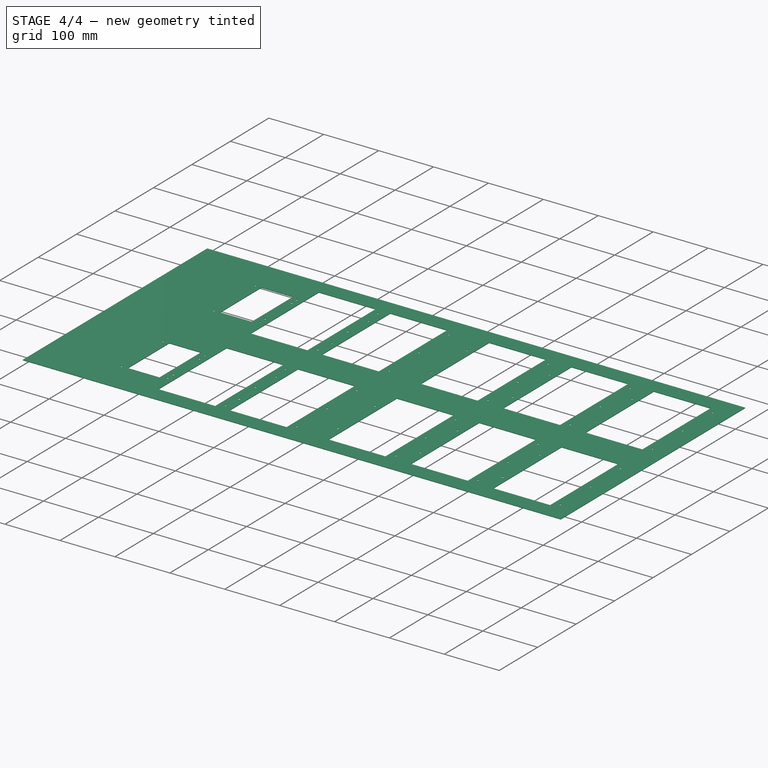
[diagram: stage 4 of 4 — iso view after this stage's code; geometry added in this stage tinted green]
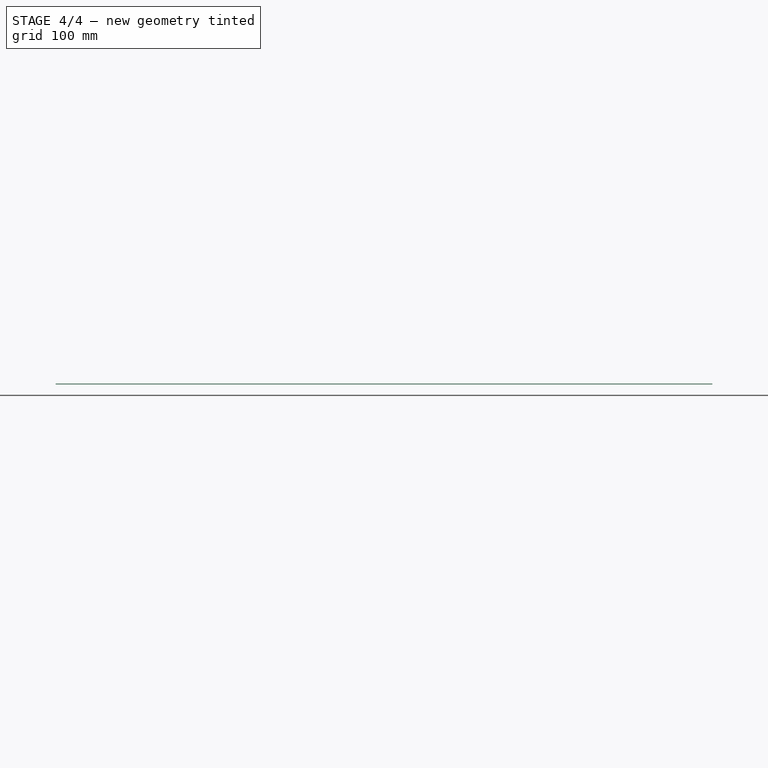
[diagram: stage 4 of 4 — front view after this stage's code; geometry added in this stage tinted green]
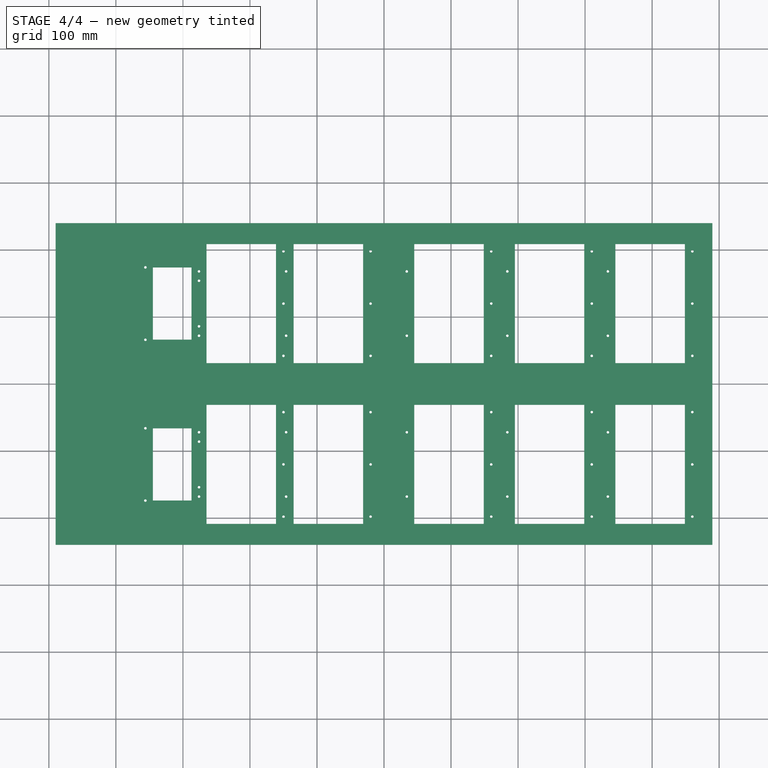
[diagram: stage 4 of 4 — top view after this stage's code; geometry added in this stage tinted green]
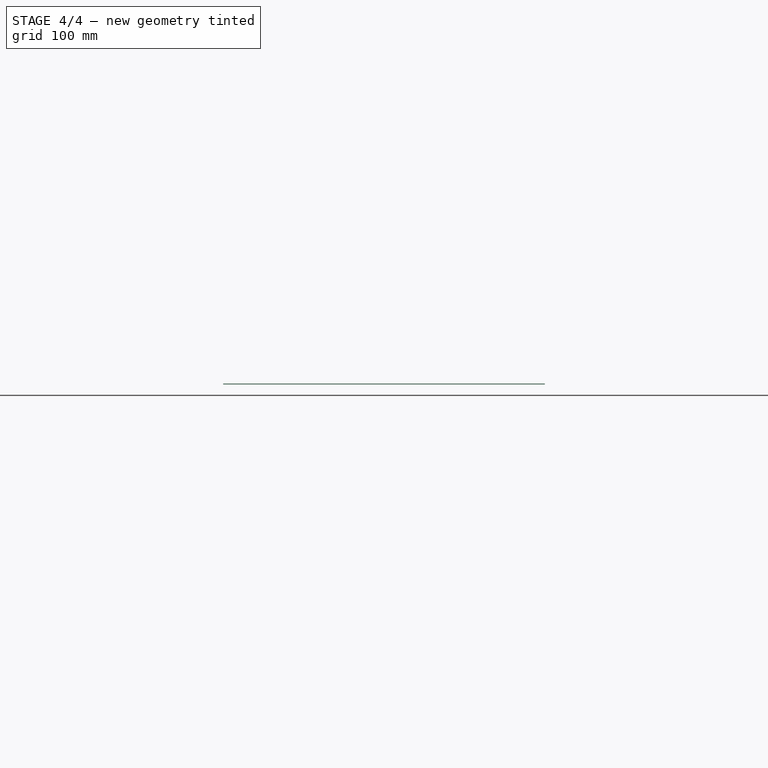
[diagram: stage 4 of 4 — right view after this stage's code; geometry added in this stage tinted green]
FEATURE [PartDesign::SubShapeBinder] Binder031
  BindCopyOnChange = 0
  BindMode = 0
  ClaimChildren = false
  Context = -> Body [Binder031.]
  Fuse = false
  MakeFace = true
  OffsetFill = false
  OffsetIntersection = false
  OffsetJoinType = 0
  OffsetOpenResult = false
  PartialLoad = false
  Relative = true
  _Version = 2
FEATURE [Sketcher::SketchObject] Sketch270
  ExternalGeometry = -> [Binder031]
  FullyConstrained = true
  MapMode = 5
  Placement = pos=(0,0,0) rot=(1,0,0;3.14159rad)
  Support = -> [Pocket071]
  expr: Constraints[18] = <<Params>>.dig_margin_v
  expr: Constraints[19] = <<Params>>.dig_margin_h
  expr: Constraints[20] = <<Params>>.dig_margin_v
  expr: Constraints[21] = <<Params>>.dig_margin_h
  expr: Constraints[5] = <<Params>>.dig_hole_diameter
  sketch-geometry (9):
    g0: Circle CenterX=-146 CenterY=168 CenterZ=0 NormalX=0 NormalY=0 NormalZ=1 AngleXU=0 Radius=1.9
    g1: Circle CenterX=-146 CenterY=72 CenterZ=0 NormalX=0 NormalY=0 NormalZ=1 AngleXU=0 Radius=1.9
    g2: Circle CenterX=-20.0001 CenterY=42 CenterZ=0 NormalX=0 NormalY=0 NormalZ=1 AngleXU=0 Radius=1.9
    g3: Circle CenterX=-20.0001 CenterY=120 CenterZ=0 NormalX=0 NormalY=0 NormalZ=1 AngleXU=0 Radius=1.9
    g4: Circle CenterX=-20.0001 CenterY=198 CenterZ=0 NormalX=0 NormalY=0 NormalZ=1 AngleXU=0 Radius=1.9
    g5: LineSegment StartX=-134.8 StartY=208.8 StartZ=0 EndX=-31.2001 EndY=208.8 EndZ=0
    g6: LineSegment StartX=-31.2001 StartY=208.8 StartZ=0 EndX=-31.2001 EndY=31.2 EndZ=0
    g7: LineSegment StartX=-31.2001 StartY=31.2 StartZ=0 EndX=-134.8 EndY=31.2 EndZ=0
    g8: LineSegment StartX=-134.8 StartY=31.2 StartZ=0 EndX=-134.8 EndY=208.8 EndZ=0
  constraints (22):
    c: Coincident(g0,g-8)
    c: Coincident(g1,g-7)
    c: Coincident(g2,g-6)
    c: Coincident(g3,g-5)
    c: Coincident(g4,g-3)
    c: Diameter(g4) = 3.8
    c: Equal(g4,g0)
    c: Equal(g0,g3)
    c: Equal(g3,g2)
    c: Equal(g2,g1)
    c: Coincident(g5,g6)
    c: Coincident(g6,g7)
    c: Coincident(g7,g8)
    c: Coincident(g8,g5)
    c: Horizontal(g5)
    c: Horizontal(g7)
    c: Vertical(g6)
    c: Vertical(g8)
    c: DistanceY(g5,g-9) = 5
    c: DistanceX(g-9,g5) = 5
    c: DistanceY(g-4,g6) = 5
    c: DistanceX(g6,g-4) = 5
FEATURE [PartDesign::Pocket] Pocket076
  BaseFeature = -> Pocket071
  Direction = (0,0,1)
  Length = 5
  Length2 = 5
  Profile = -> Sketch270
  ReferenceAxis = -> Sketch270 [N_Axis]
  Type = 2
FEATURE [PartDesign::SubShapeBinder] Binder034
  BindCopyOnChange = 0
  BindMode = 0
  ClaimChildren = false
  Context = -> Body [Binder034.]
  Fuse = false
  MakeFace = true
  OffsetFill = false
  OffsetIntersection = false
  OffsetJoinType = 0
  OffsetOpenResult = false
  PartialLoad = false
  Relative = true
  _Version = 2
FEATURE [Sketcher::SketchObject] Sketch288
  ExternalGeometry = -> [Binder034]
  FullyConstrained = true
  MapMode = 5
  Placement = pos=(0,0,0) rot=(1,0,0;3.14159rad)
  Support = -> [Pocket076]
  expr: Constraints[13] = <<Params>>.dig_hole_diameter
  expr: Constraints[18] = <<Params>>.dig_margin_v
  expr: Constraints[19] = <<Params>>.dig_margin_h
  expr: Constraints[20] = <<Params>>.dig_margin_v
  expr: Constraints[21] = <<Params>>.dig_margin_h
  sketch-geometry (9):
    g0: Circle CenterX=-150 CenterY=198 CenterZ=0 NormalX=0 NormalY=0 NormalZ=1 AngleXU=0 Radius=1.9
    g1: Circle CenterX=-150 CenterY=120 CenterZ=0 NormalX=0 NormalY=0 NormalZ=1 AngleXU=0 Radius=1.9
    g2: Circle CenterX=-150 CenterY=42 CenterZ=0 NormalX=0 NormalY=0 NormalZ=1 AngleXU=0 Radius=1.9
    g3: Circle CenterX=-276 CenterY=72 CenterZ=0 NormalX=0 NormalY=0 NormalZ=1 AngleXU=0 Radius=1.9
    g4: Circle CenterX=-276 CenterY=168 CenterZ=0 NormalX=0 NormalY=0 NormalZ=1 AngleXU=0 Radius=1.9
    g5: LineSegment StartX=-264.8 StartY=208.8 StartZ=0 EndX=-161.2 EndY=208.8 EndZ=0
    g6: LineSegment StartX=-161.2 StartY=208.8 StartZ=0 EndX=-161.2 EndY=31.2 EndZ=0
    g7: LineSegment StartX=-161.2 StartY=31.2 StartZ=0 EndX=-264.8 EndY=31.2 EndZ=0
    g8: LineSegment StartX=-264.8 StartY=31.2 StartZ=0 EndX=-264.8 EndY=208.8 EndZ=0
  constraints (22):
    c: Coincident(g0,g-4)
    c: Coincident(g1,g-6)
    c: Coincident(g2,g-7)
    c: Coincident(g3,g-8)
    c: Coincident(g4,g-3)
    c: Coincident(g5,g6)
    c: Coincident(g6,g7)
    c: Coincident(g7,g8)
    c: Coincident(g8,g5)
    c: Horizontal(g5)
    c: Horizontal(g7)
    c: Vertical(g6)
    c: Vertical(g8)
    c: Diameter(g0) = 3.8
    c: Equal(g0,g1)
    c: Equal(g1,g2)
    c: Equal(g2,g3)
    c: Equal(g3,g4)
    c: DistanceY(g5,g-9) = 5
    c: DistanceX(g-9,g5) = 5
    c: DistanceY(g-5,g6) = 5
    c: DistanceX(g6,g-5) = 5
FEATURE [PartDesign::Pocket] Pocket081
  BaseFeature = -> Pocket076
  Direction = (0,0,1)
  Length = 5
  Length2 = 5
  Profile = -> Sketch288
  ReferenceAxis = -> Sketch288 [N_Axis]
  Type = 2
FEATURE [PartDesign::SubShapeBinder] Binder037
  BindCopyOnChange = 0
  BindMode = 0
  ClaimChildren = false
  Context = -> Body [Binder037.]
  Fuse = false
  MakeFace = true
  OffsetFill = false
  OffsetIntersection = false
  OffsetJoinType = 0
  OffsetOpenResult = false
  PartialLoad = false
  Relative = true
  _Version = 2
FEATURE [Sketcher::SketchObject] Sketch303
  ExternalGeometry = -> [Binder037]
  FullyConstrained = true
  MapMode = 5
  Placement = pos=(0,0,0) rot=(1,0,0;3.14159rad)
  Support = -> [Pocket081]
  expr: Constraints[12] = <<Params>>.dig_hole_diameter
  expr: Constraints[16] = <<Params>>.dig_margin_v
  expr: Constraints[17] = <<Params>>.dig_margin_h
  expr: Constraints[18] = <<Params>>.dig_margin_v
  expr: Constraints[19] = <<Params>>.dig_margin_h
  sketch-geometry (8):
    g0: Circle CenterX=-276 CenterY=85.9999 CenterZ=0 NormalX=0 NormalY=0 NormalZ=1 AngleXU=0 Radius=1.9
    g1: Circle CenterX=-356 CenterY=65.9999 CenterZ=0 NormalX=0 NormalY=0 NormalZ=1 AngleXU=0 Radius=1.9
    g2: Circle CenterX=-276 CenterY=154 CenterZ=0 NormalX=0 NormalY=0 NormalZ=1 AngleXU=0 Radius=1.9
    g3: Circle CenterX=-356 CenterY=174 CenterZ=0 NormalX=0 NormalY=0 NormalZ=1 AngleXU=0 Radius=1.9
    g4: LineSegment StartX=-344.8 StartY=173.8 StartZ=0 EndX=-287.2 EndY=173.8 EndZ=0
    g5: LineSegment StartX=-287.2 StartY=173.8 StartZ=0 EndX=-287.2 EndY=66.1999 EndZ=0
    g6: LineSegment StartX=-287.2 StartY=66.1999 StartZ=0 EndX=-344.8 EndY=66.1999 EndZ=0
    g7: LineSegment StartX=-344.8 StartY=66.1999 StartZ=0 EndX=-344.8 EndY=173.8 EndZ=0
  constraints (20):
    c: Coincident(g0,g-7)
    c: Coincident(g1,g-8)
    c: Coincident(g2,g-4)
    c: Coincident(g3,g-3)
    c: Coincident(g4,g5)
    c: Coincident(g5,g6)
    c: Coincident(g6,g7)
    c: Coincident(g7,g4)
    c: Horizontal(g4)
    c: Horizontal(g6)
    c: Vertical(g5)
    c: Vertical(g7)
    c: Diameter(g2) = 3.8
    c: Equal(g2,g3)
    c: Equal(g3,g0)
    c: Equal(g0,g1)
    c: DistanceY(g4,g-6) = 5
    c: DistanceX(g-6,g4) = 5
    c: DistanceY(g-5,g5) = 5
    c: DistanceX(g5,g-5) = 5
FEATURE [PartDesign::Pocket] Pocket085
  BaseFeature = -> Pocket081
  Direction = (0,0,1)
  Length = 5
  Length2 = 5
  Profile = -> Sketch303
  ReferenceAxis = -> Sketch303 [N_Axis]
  Type = 2
FEATURE [PartDesign::Body] Body
  Group = -> [Sketch,Pad,Binder002,Sketch077,Pocket018,Binder005,Sketch095,Pocket023,Binder008,Sketch113,Pocket028,Binder011,Sketch131,Pocket033,Binder014,Sketch149,Pocket038,Binder019,Sketch198,Pocket056,Binder022,Sketch216,Pocket061,Binder025,Sketch234,Pocket066,Binder028,Sketch252,Pocket071,Binder031,Sketch270,Pocket076,Binder034,Sketch288,Pocket081,Binder037,Sketch303,Pocket085]
  Origin = -> Origin
  Tip = -> Pocket085
FEATURE [Part::Part2DObjectPython] Shape2DView  # Draft 2D object (typed FeaturePython)
  AutoUpdate = true
  Base = -> Body
  Clip = false
  FuseArch = false
  HiddenLines = false
  InPlace = true
  OnlySolids = false
  Projection = (0,0,1)
  ProjectionMode = 0
  SegmentLength = 0.05
  Tessellation = false
  VisibleOnly = false
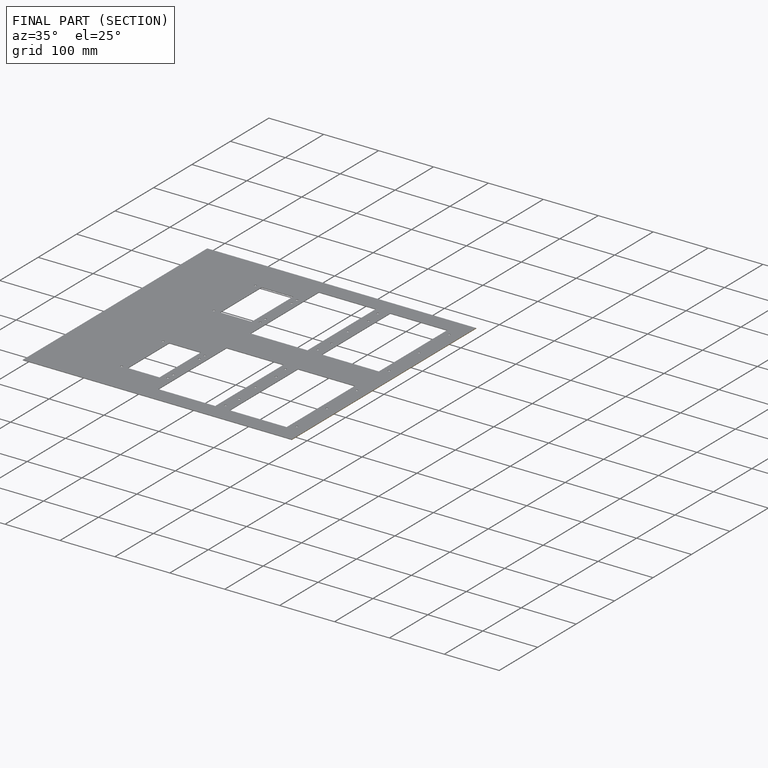
[diagram: finished part — half-section view (interior)]
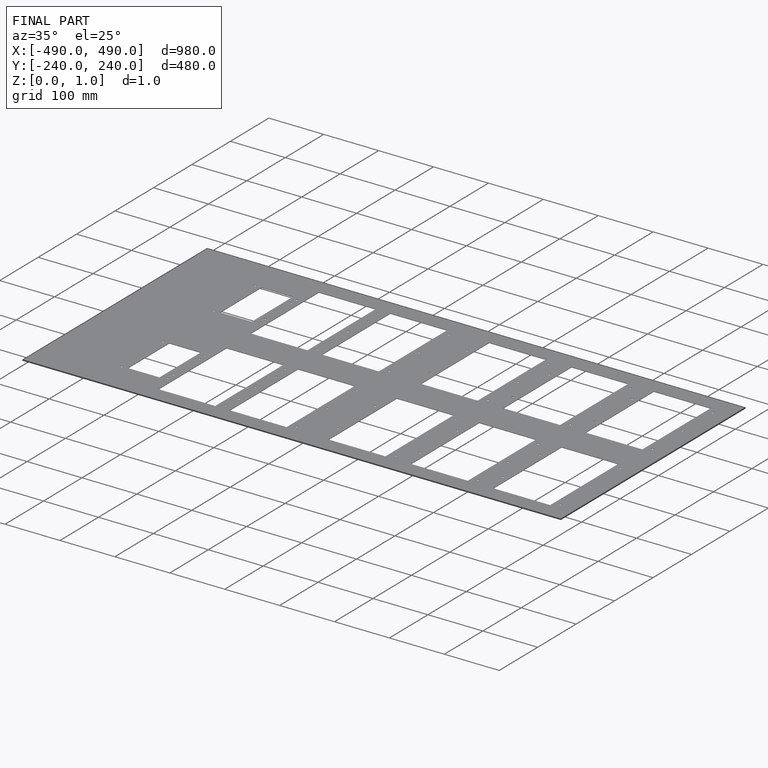
[diagram: finished part — iso view with bounding-box wireframe]
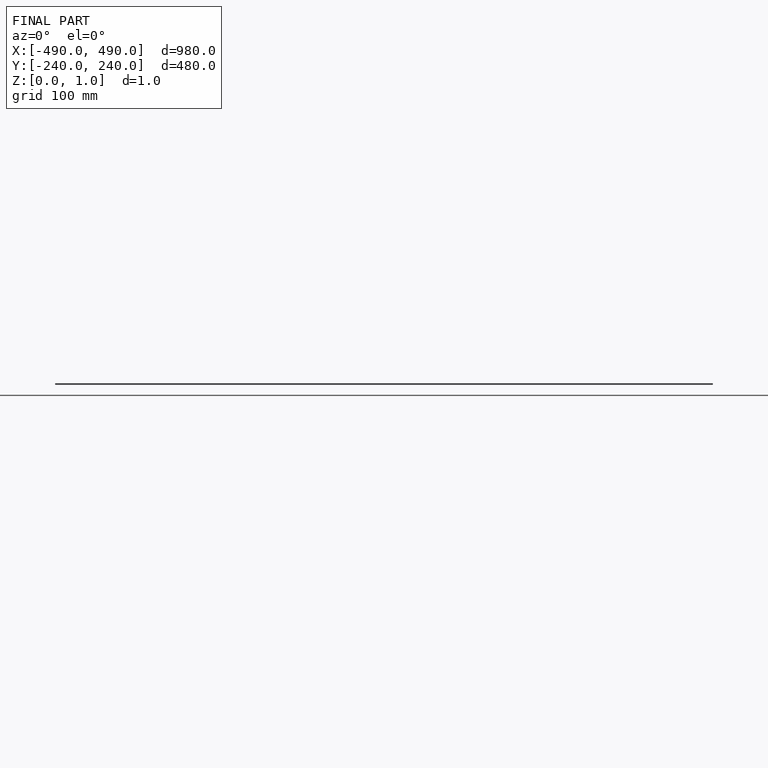
[diagram: finished part — front view with bounding-box wireframe]
